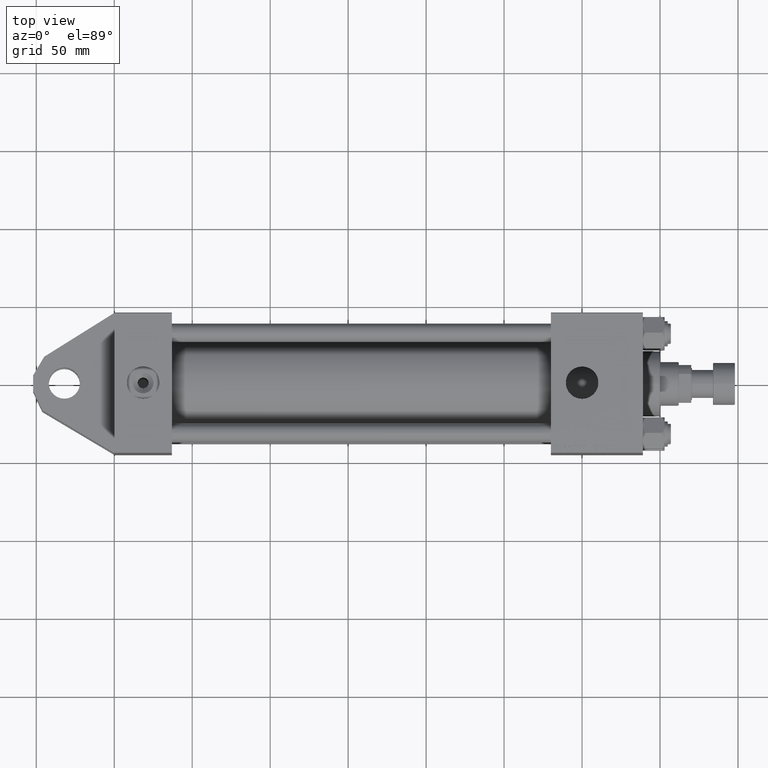
[diagram: clean part render]
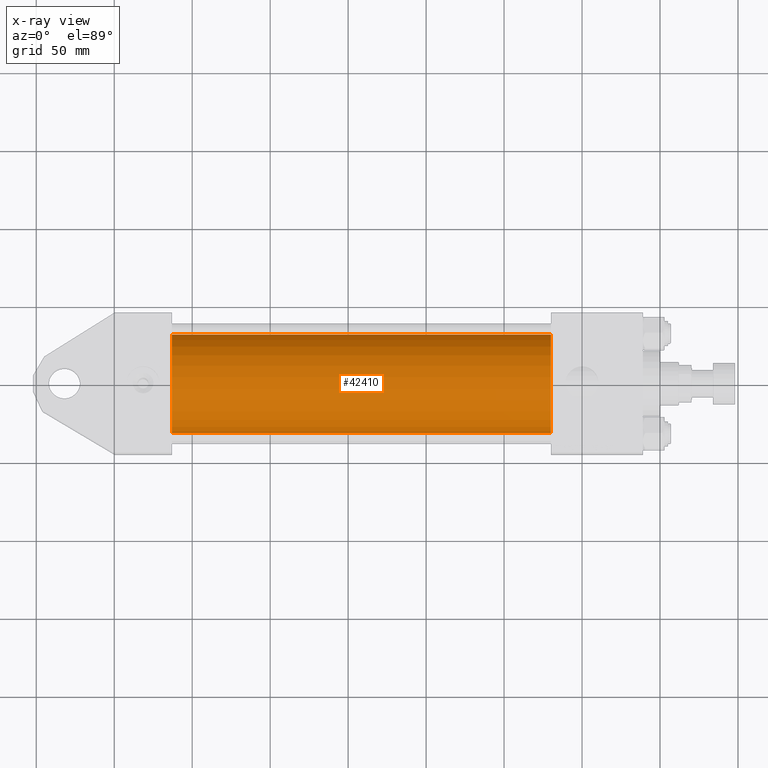
[diagram: x-ray — body ghosted, one internal face saturated and labeled with its STEP entity id]
A machine part, top view, then the same camera in x-ray: the body is ghosted and one INTERNAL B-rep face — a face not visible from any outside direction — is saturated and labeled: STEP entity #42410.
In plain terms, the highlighted cylindrical surface (partial cylindrical patch) has radius 31.5 mm, axis along (-1, -0, 0).
Its self-contained STEP definition (entity closure, byte-faithful):
#1132 = CARTESIAN_POINT ( 'NONE',  ( 279.9999999999999432, 3.881904653605483521E-16, -31.50000000000000000 ) ) ;
#1821 = CARTESIAN_POINT ( 'NONE',  ( 37.00000000000000000, 3.881904653605483521E-16, -31.50000000000000000 ) ) ;
#2963 = DIRECTION ( 'NONE',  ( -1.000000000000000000, -0.000000000000000000, -0.000000000000000000 ) ) ;
#4061 = VERTEX_POINT ( 'NONE', #1132 ) ;
#4176 = AXIS2_PLACEMENT_3D ( 'NONE', #46243, #37530, #10018 ) ;
#5935 = AXIS2_PLACEMENT_3D ( 'NONE', #42661, #7408, #14633 ) ;
#7408 = DIRECTION ( 'NONE',  ( 1.000000000000000000, 0.000000000000000000, 0.000000000000000000 ) ) ;
#9226 = EDGE_CURVE ( 'NONE', #4061, #27750, #49361, .T. ) ;
#9634 = EDGE_CURVE ( 'NONE', #48112, #16212, #21127, .T. ) ;
#10018 = DIRECTION ( 'NONE',  ( 0.000000000000000000, 0.000000000000000000, -1.000000000000000000 ) ) ;
#11094 = ORIENTED_EDGE ( 'NONE', *, *, #9634, .F. ) ;
#11770 = EDGE_CURVE ( 'NONE', #16212, #27750, #19329, .T. ) ;
#13133 = CARTESIAN_POINT ( 'NONE',  ( 279.9999999999999432, 3.881904653605483521E-16, -31.50000000000000000 ) ) ;
#14633 = DIRECTION ( 'NONE',  ( 0.000000000000000000, 0.000000000000000000, -1.000000000000000000 ) ) ;
#15259 = AXIS2_PLACEMENT_3D ( 'NONE', #38904, #2963, #35456 ) ;
#16212 = VERTEX_POINT ( 'NONE', #51553 ) ;
#19329 = CIRCLE ( 'NONE', #4176, 31.50000000000000000 ) ;
#21127 = LINE ( 'NONE', #24832, #42069 ) ;
#21443 = ORIENTED_EDGE ( 'NONE', *, *, #11770, .F. ) ;
#24832 = CARTESIAN_POINT ( 'NONE',  ( 279.9999999999999432, -3.469446951953614189E-15, 31.50000000000000000 ) ) ;
#26848 = VECTOR ( 'NONE', #29252, 1000.000000000000000 ) ;
#27750 = VERTEX_POINT ( 'NONE', #1821 ) ;
#29252 = DIRECTION ( 'NONE',  ( -1.000000000000000000, -0.000000000000000000, -0.000000000000000000 ) ) ;
#30707 = FACE_OUTER_BOUND ( 'NONE', #44759, .T. ) ;
#31486 = ORIENTED_EDGE ( 'NONE', *, *, #9226, .T. ) ;
#34675 = CYLINDRICAL_SURFACE ( 'NONE', #15259, 31.50000000000000000 ) ;
#35456 = DIRECTION ( 'NONE',  ( 0.000000000000000000, 0.000000000000000000, 1.000000000000000000 ) ) ;
#35488 = CIRCLE ( 'NONE', #5935, 31.50000000000000000 ) ;
#36839 = EDGE_CURVE ( 'NONE', #48112, #4061, #35488, .T. ) ;
#37530 = DIRECTION ( 'NONE',  ( 1.000000000000000000, 0.000000000000000000, 0.000000000000000000 ) ) ;
#38904 = CARTESIAN_POINT ( 'NONE',  ( 279.9999999999999432, -3.469446951953614189E-15, 0.000000000000000000 ) ) ;
#41010 = ORIENTED_EDGE ( 'NONE', *, *, #36839, .T. ) ;
#41485 = DIRECTION ( 'NONE',  ( -1.000000000000000000, -0.000000000000000000, -0.000000000000000000 ) ) ;
#42069 = VECTOR ( 'NONE', #41485, 1000.000000000000000 ) ;
#42410 = ADVANCED_FACE ( 'NONE', ( #30707 ), #34675, .F. ) ;
#42661 = CARTESIAN_POINT ( 'NONE',  ( 279.9999999999999432, -3.469446951953614189E-15, 0.000000000000000000 ) ) ;
#44759 = EDGE_LOOP ( 'NONE', ( #41010, #31486, #21443, #11094 ) ) ;
#46243 = CARTESIAN_POINT ( 'NONE',  ( 37.00000000000000000, -3.469446951953614189E-15, 0.000000000000000000 ) ) ;
#48112 = VERTEX_POINT ( 'NONE', #48758 ) ;
#48758 = CARTESIAN_POINT ( 'NONE',  ( 279.9999999999999432, -3.469446951953614189E-15, 31.50000000000000000 ) ) ;
#49361 = LINE ( 'NONE', #13133, #26848 ) ;
#51553 = CARTESIAN_POINT ( 'NONE',  ( 37.00000000000000000, -3.469446951953614189E-15, 31.50000000000000000 ) ) ;